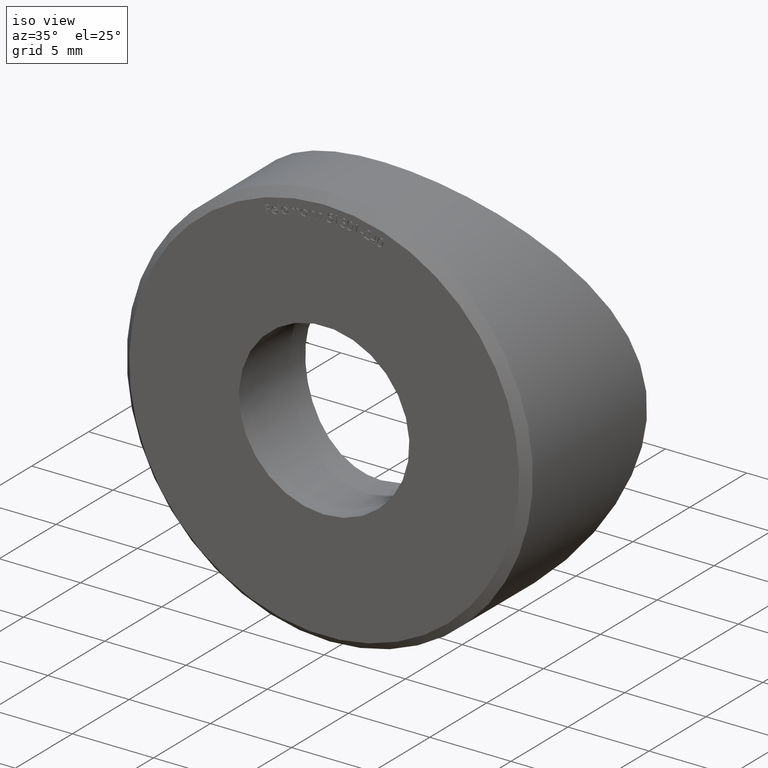
[diagram: clean part render]
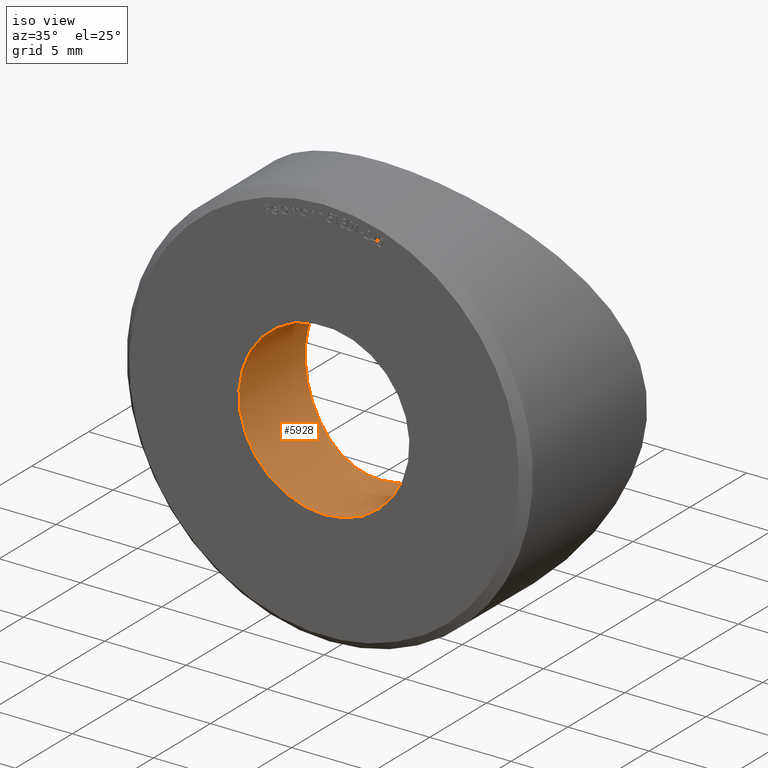
[diagram: same view with one face highlighted and labeled with its STEP entity id]
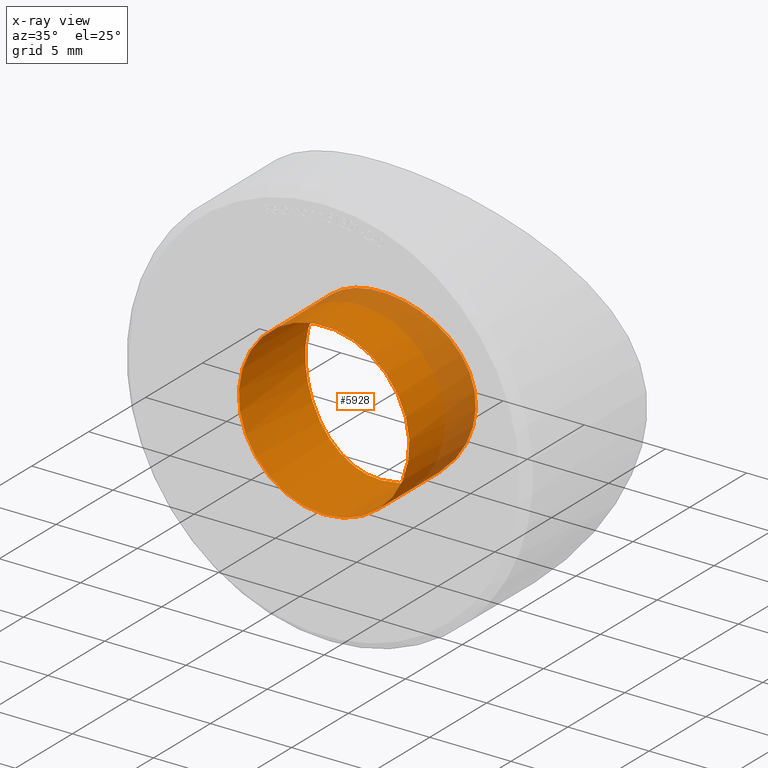
[diagram: x-ray of the same camera — body ghosted, the highlighted face saturated]
A machine part, iso view. The second image highlights one B-rep face of the part: STEP entity #5928.
The next image is the same camera in x-ray: the body ghosted, the highlighted face saturated — about 22% of this face is hidden behind the body in this view.
In plain terms, the highlighted cylindrical surface (bore or boss wall) has radius 5.25 mm, axis along (-0, -1, -0).
Its self-contained STEP definition (entity closure, byte-faithful):
#39 = CARTESIAN_POINT ( 'NONE',  ( 5.114072538672539636, 5.794781767081942370, -1.199457975481895700 ) ) ;
#132 = CARTESIAN_POINT ( 'NONE',  ( 2.636318224063361804, 5.205006999068901408, -4.552974423075275112 ) ) ;
#176 = CARTESIAN_POINT ( 'NONE',  ( 0.6921009891487968080, 5.010834844994149329, -5.215514898003472233 ) ) ;
#218 = CARTESIAN_POINT ( 'NONE',  ( -2.336549128238553319, 5.159736465711462827, -4.713902056431682475 ) ) ;
#340 = CARTESIAN_POINT ( 'NONE',  ( 3.949367494091248432, 5.468989051938109469, 3.463279071851302682 ) ) ;
#931 = CARTESIAN_POINT ( 'NONE',  ( 1.700722113320666251, 5.083000531295906121, -4.978782569828294591 ) ) ;
#975 = CARTESIAN_POINT ( 'NONE',  ( 5.250233374876410508, 5.838830474625437361, 0.3412470677173283229 ) ) ;
#1015 = CARTESIAN_POINT ( 'NONE',  ( 5.215889360291483534, 5.827450891605465699, -0.6904691479023161715 ) ) ;
#1095 = CARTESIAN_POINT ( 'NONE',  ( 3.472981141784742931, 5.359952677556108824, -3.951782680105696777 ) ) ;
#1136 = CARTESIAN_POINT ( 'NONE',  ( 4.166594991203600884, 5.522890351835532563, 3.198639040621010121 ) ) ;
#1216 = CARTESIAN_POINT ( 'NONE',  ( -1.368901646134648153, 5.052227367017660953, 5.080291582661442540 ) ) ;
#1263 = CARTESIAN_POINT ( 'NONE',  ( 0.1742114768985305318, 5.000022558697903463, 5.249927597316259131 ) ) ;
#1305 = CARTESIAN_POINT ( 'NONE',  ( -3.468694561112712904, 5.359020778082286718, 3.955763542814920708 ) ) ;
#1408 = EDGE_LOOP ( 'NONE', ( #5164 ) ) ;
#1713 = CYLINDRICAL_SURFACE ( 'NONE', #5431, 5.250000000000000000 ) ;
#1815 = EDGE_CURVE ( 'NONE', #11951, #11951, #5587, .T. ) ;
#1853 = CARTESIAN_POINT ( 'NONE',  ( 0.000000000000000000, 5.000000000000000888, -5.250000000000000000 ) ) ;
#1922 = CARTESIAN_POINT ( 'NONE',  ( 5.071313187705052350, 5.781177205016037490, -1.368940497379947274 ) ) ;
#1973 = DIRECTION ( 'NONE',  ( -0.000000000000000000, -1.000000000000000000, -0.000000000000000000 ) ) ;
#2057 = CARTESIAN_POINT ( 'NONE',  ( 4.715602492473250251, 5.672720363690729073, -2.332864904931549077 ) ) ;
#2100 = CARTESIAN_POINT ( 'NONE',  ( -3.948420003138924272, 5.468761203191601084, 3.464350055501332459 ) ) ;
#2143 = CARTESIAN_POINT ( 'NONE',  ( -4.165492582866989757, 5.522609621212325237, 3.200064588460644455 ) ) ;
#2181 = CARTESIAN_POINT ( 'NONE',  ( -2.636911402311577390, 5.205105009455080811, -4.552611437747676071 ) ) ;
#2219 = CARTESIAN_POINT ( 'NONE',  ( 0.8641151006835368076, 5.021313592226054112, 5.181287294700132939 ) ) ;
#2261 = CARTESIAN_POINT ( 'NONE',  ( -4.716384417968161991, 5.672946696874823225, -2.331409995878598984 ) ) ;
#2991 = CARTESIAN_POINT ( 'NONE',  ( 4.970589487578164878, 5.749735293779646206, -1.698662909212856675 ) ) ;
#3029 = CARTESIAN_POINT ( 'NONE',  ( -1.697284585114810174, 5.082667682876707893, 4.979887370174824746 ) ) ;
#3073 = CARTESIAN_POINT ( 'NONE',  ( -5.241244241027329664, 5.835875365966622930, 0.3492217495461031329 ) ) ;
#3114 = CARTESIAN_POINT ( 'NONE',  ( -4.713834619099483092, 5.672189327458601937, 2.337115533348774754 ) ) ;
#3148 = DIRECTION ( 'NONE',  ( 0.000000000000000000, 0.000000000000000000, -1.000000000000000000 ) ) ;
#3153 = CARTESIAN_POINT ( 'NONE',  ( -4.551153764509756172, 5.625082416940963448, 2.639188357250733752 ) ) ;
#3193 = CARTESIAN_POINT ( 'NONE',  ( 2.640360242412693292, 5.205664951805434981, 4.550554087942201065 ) ) ;
#3772 = CARTESIAN_POINT ( 'NONE',  ( 3.205379849622109756, 5.305166794457839785, -4.171964752408960919 ) ) ;
#3814 = CARTESIAN_POINT ( 'NONE',  ( 3.953846202238681329, 5.468597162737432349, -3.470631725063690443 ) ) ;
#3853 = CARTESIAN_POINT ( 'NONE',  ( 1.366079408211753332, 5.052074117701201850, -5.080789946547358937 ) ) ;
#3860 = CARTESIAN_POINT ( 'NONE',  ( 0.000000000000000000, 11.56354056581638545, 0.000000000000000000 ) ) ;
#3982 = CARTESIAN_POINT ( 'NONE',  ( 3.207442109140192343, 5.305583826475295695, 4.170294933636639279 ) ) ;
#4022 = CARTESIAN_POINT ( 'NONE',  ( -4.267044650827057417, 5.548943508497199417, 3.063296246066151696 ) ) ;
#4063 = CARTESIAN_POINT ( 'NONE',  ( -5.079771660166137792, 5.783779098434239430, 1.369771553509659512 ) ) ;
#4100 = CARTESIAN_POINT ( 'NONE',  ( 1.372988120640244336, 5.052591625662089747, 5.079088045149507735 ) ) ;
#4140 = CARTESIAN_POINT ( 'NONE',  ( 1.700496372359804775, 5.083000137330764723, 4.978769443553709984 ) ) ;
#4723 = CARTESIAN_POINT ( 'NONE',  ( 4.170342221362377089, 5.523022242942722038, -3.207747654436426732 ) ) ;
#4811 = CARTESIAN_POINT ( 'NONE',  ( 4.554073731645823742, 5.625870766988625427, -2.634731808847641688 ) ) ;
#4823 = FACE_OUTER_BOUND ( 'NONE', #8541, .T. ) ;
#4931 = CARTESIAN_POINT ( 'NONE',  ( -3.954458663665274099, 5.468743443976433305, -3.469952234522466483 ) ) ;
#5008 = CARTESIAN_POINT ( 'NONE',  ( -4.554595509279081966, 5.626017837920256781, -2.633831334303676996 ) ) ;
#5049 = CARTESIAN_POINT ( 'NONE',  ( -4.979905882767483583, 5.752101616310501875, 1.697905542490130593 ) ) ;
#5093 = CARTESIAN_POINT ( 'NONE',  ( 3.833197147421965933, 5.441328752428581161, 3.591432632963642124 ) ) ;
#5112 = FACE_OUTER_BOUND ( 'NONE', #1408, .T. ) ;
#5164 = ORIENTED_EDGE ( 'NONE', *, *, #1815, .T. ) ;
#5431 = AXIS2_PLACEMENT_3D ( 'NONE', #3860, #1973, #8601 ) ;
#5587 = CIRCLE ( 'NONE', #8991, 5.250000000000000000 ) ;
#5715 = CARTESIAN_POINT ( 'NONE',  ( 4.912492258411073287, 5.731854460402621143, -1.859861874971246776 ) ) ;
#5885 = CARTESIAN_POINT ( 'NONE',  ( -3.832248883603845968, 5.441105981568387762, 3.592453240524670743 ) ) ;
#5928 = ADVANCED_FACE ( 'NONE', ( #5112, #4823 ), #1713, .F. ) ;
#5966 = CARTESIAN_POINT ( 'NONE',  ( -0.3491772455097332806, 5.000000000000001776, -5.250000000000001776 ) ) ;
#6003 = CARTESIAN_POINT ( 'NONE',  ( -5.249961255038257946, 5.838741248038974874, 0.1741944823152363209 ) ) ;
#6043 = CARTESIAN_POINT ( 'NONE',  ( -0.3418357061492115490, 4.999955311801337565, 5.250143427848961153 ) ) ;
#6553 = CARTESIAN_POINT ( 'NONE',  ( 0.000000000000000000, 0.000000000000000000, -5.250000000000000000 ) ) ;
#6621 = CARTESIAN_POINT ( 'NONE',  ( 5.215622703267168703, 5.827365911635551399, 0.6915890230860378685 ) ) ;
#6789 = CARTESIAN_POINT ( 'NONE',  ( -2.637858525719622094, 5.205262195990119523, 4.552028162394397448 ) ) ;
#6828 = CARTESIAN_POINT ( 'NONE',  ( -0.6925339196525498453, 5.010841534359871119, -5.215495381786534601 ) ) ;
#6866 = CARTESIAN_POINT ( 'NONE',  ( -4.971727771192361978, 5.750086560946318315, -1.695392905877582068 ) ) ;
#6905 = CARTESIAN_POINT ( 'NONE',  ( 4.715605714907344925, 5.672709298795840738, 2.333456395270282258 ) ) ;
#6948 = CARTESIAN_POINT ( 'NONE',  ( -0.6873645655011946243, 5.010564525487978926, 5.216395713109217347 ) ) ;
#6970 = VERTEX_POINT ( 'NONE', #1853 ) ;
#7736 = CARTESIAN_POINT ( 'NONE',  ( 4.268218731736424409, 5.549250488316429752, 3.061672325128487415 ) ) ;
#7860 = CARTESIAN_POINT ( 'NONE',  ( -1.367615186895359436, 5.052187947194366480, -5.080415731795886458 ) ) ;
#7900 = CARTESIAN_POINT ( 'NONE',  ( -3.205646483505555366, 5.305229684618289809, 4.171700925969147988 ) ) ;
#8461 = CARTESIAN_POINT ( 'NONE',  ( 2.168404344971008868E-16, 5.000000000000000888, -5.250000000000000888 ) ) ;
#8501 = CARTESIAN_POINT ( 'NONE',  ( 5.080650092723066003, 5.784057203271033565, 1.366751694713467025 ) ) ;
#8541 = EDGE_LOOP ( 'NONE', ( #10006 ) ) ;
#8601 = DIRECTION ( 'NONE',  ( 0.000000000000000000, 0.000000000000000000, -1.000000000000000000 ) ) ;
#8683 = CARTESIAN_POINT ( 'NONE',  ( -5.181112163249664171, 5.816290656988939212, 0.8648932355407802364 ) ) ;
#8728 = CARTESIAN_POINT ( 'NONE',  ( 4.552514003337587489, 5.625462429153597732, 2.636897897725405837 ) ) ;
#8767 = CARTESIAN_POINT ( 'NONE',  ( -1.702844947927628860, 5.083226972491357465, -4.978017025846793508 ) ) ;
#8806 = CARTESIAN_POINT ( 'NONE',  ( 3.470142572929364455, 5.359330503249211120, 3.954461459671014367 ) ) ;
#8850 = CARTESIAN_POINT ( 'NONE',  ( -3.473395346362866842, 5.360038373459831362, -3.951434752133658357 ) ) ;
#8991 = AXIS2_PLACEMENT_3D ( 'NONE', #10728, #11579, #3148 ) ;
#9633 = CARTESIAN_POINT ( 'NONE',  ( -5.216272045195847973, 5.827577432496964249, -0.6871705253636419819 ) ) ;
#9646 = EDGE_CURVE ( 'NONE', #6970, #6970, #10131, .T. ) ;
#9672 = CARTESIAN_POINT ( 'NONE',  ( 2.168404344971008868E-16, 5.000000000000000888, -5.250000000000000888 ) ) ;
#9712 = CARTESIAN_POINT ( 'NONE',  ( -2.330546265504453096, 5.158901710790308570, 4.716842936418203180 ) ) ;
#9756 = CARTESIAN_POINT ( 'NONE',  ( -5.250077097695748485, 5.838779232211675385, -0.3448739719642641144 ) ) ;
#9802 = CARTESIAN_POINT ( 'NONE',  ( 0.6908566564681398736, 5.013286629519210891, 5.207223959990455064 ) ) ;
#10006 = ORIENTED_EDGE ( 'NONE', *, *, #9646, .F. ) ;
#10131 = B_SPLINE_CURVE_WITH_KNOTS ( 'NONE', 3,
 ( #8461, #11426, #176, #3853, #931, #10448, #132, #3772, #1095, #3814, #4723, #4811, #2057, #5715, #2991, #1922, #39, #1015, #12234, #975, #6621, #8501, #11382, #6905, #8728, #7736, #1136, #340, #5093, #8806, #3982, #3193, #11673, #4140, #4100, #2219, #9802, #10732, #1263, #6043, #6948, #1216, #3029, #9712, #6789, #7900, #1305, #5885, #2100, #2143, #4022, #3153, #3114, #5049, #4063, #8683, #10653, #3073, #6003, #9756, #9633, #10694, #11627, #6866, #10569, #2261, #5008, #11583, #4931, #8850, #11503, #2181, #218, #8767, #7860, #6828, #5966, #9672 ),
 .UNSPECIFIED., .T., .F.,
 ( 4, 2, 2, 2, 2, 2, 2, 2, 2, 2, 2, 2, 2, 2, 2, 2, 2, 2, 2, 2, 2, 2, 2, 2, 2, 2, 2, 2, 2, 2, 2, 2, 2, 2, 2, 2, 2, 2, 4 ),
 ( 0.000000000000000000, 0.001032197757671248980, 0.002064395515342497961, 0.003096593273013747809, 0.004128791030684997657, 0.005160988788356249239, 0.006193186546027499954, 0.006709285424863124445, 0.007225384303698750670, 0.008257582061370000517, 0.009289779819041251233, 0.01032197757671250368, 0.01135417533438375440, 0.01187027421321937802, 0.01238637309205500338, 0.01341857084972624889, 0.01445076860739749787, 0.01548296636506874512, 0.01599906524390436874, 0.01651516412273999063, 0.01754736188041124134, 0.01857955963808248859, 0.01961175739575373583, 0.02064395515342499002, 0.02116005403226061191, 0.02167615291109623726, 0.02270835066876748798, 0.02374054842643873522, 0.02425664730527436058, 0.02477274618410998247, 0.02580494394178123319, 0.02632104282061685507, 0.02683714169945248043, 0.02786933945712372421, 0.02890153721479497492, 0.02993373497246621870, 0.03096593273013746248, 0.03199813048780870972, 0.03303032824547995350 ),
 .UNSPECIFIED. ) ;
#10448 = CARTESIAN_POINT ( 'NONE',  ( 2.335577761765165850, 5.159589477517060985, -4.714425532672246177 ) ) ;
#10569 = CARTESIAN_POINT ( 'NONE',  ( -4.913544319696192098, 5.732174740184929895, -1.857120312504062731 ) ) ;
#10653 = CARTESIAN_POINT ( 'NONE',  ( -5.206755598594475565, 5.824628705550627394, 0.6944732975163683264 ) ) ;
#10694 = CARTESIAN_POINT ( 'NONE',  ( -5.115087613922306709, 5.795105623294206865, -1.195064034687537857 ) ) ;
#10728 = CARTESIAN_POINT ( 'NONE',  ( 0.000000000000000000, 0.000000000000000000, 0.000000000000000000 ) ) ;
#10732 = CARTESIAN_POINT ( 'NONE',  ( 0.3463459543411181452, 5.002678417047283332, 5.241422399425230694 ) ) ;
#11382 = CARTESIAN_POINT ( 'NONE',  ( 4.980818974499697127, 5.752387940039146663, 1.695110129271366395 ) ) ;
#11426 = CARTESIAN_POINT ( 'NONE',  ( 0.3491772455097349459, 5.000000000000000888, -5.250000000000000888 ) ) ;
#11503 = CARTESIAN_POINT ( 'NONE',  ( -3.205511166005371670, 5.305196309580367142, -4.171842615843346813 ) ) ;
#11579 = DIRECTION ( 'NONE',  ( 0.000000000000000000, -1.000000000000000000, 0.000000000000000000 ) ) ;
#11583 = CARTESIAN_POINT ( 'NONE',  ( -4.170962313873765481, 5.523181239908625528, -3.206942644786444419 ) ) ;
#11627 = CARTESIAN_POINT ( 'NONE',  ( -5.072563264359629009, 5.781571585717041550, -1.364381202309159491 ) ) ;
#11673 = CARTESIAN_POINT ( 'NONE',  ( 2.333010968662814655, 5.159253098580101060, 4.715601012020838922 ) ) ;
#11951 = VERTEX_POINT ( 'NONE', #6553 ) ;
#12234 = CARTESIAN_POINT ( 'NONE',  ( 5.249764195182566873, 5.838676633209598066, -0.3483905091573943902 ) ) ;